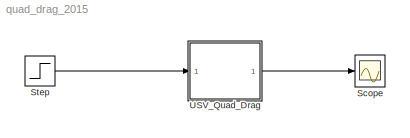
MODEL quad_drag_2015
KIND model
BLOCK [Scope] Scope
  Ports = [1]
  SID = 15
  ScopeSpecificationString = Simulink.scopes.TimeScopeBlockCfg('CurrentConfiguration', extmgr.ConfigurationSet(extmgr.Configuration('Core','General UI',true),extmgr.Configuration('Core','Source UI',true),extmgr.Configuration('Sources','WiredSimulink',true),extmgr.Configuration('Visuals','Time Domain',true,'SerializedDisplays',{struct('MinYLimReal','-0.38379','MaxYLimReal','3.45407','YLabelReal','','MinYLimMag','0.00000','MaxY...<+1333ch>
BLOCK [Step] Step
  SID = 14
  SampleTime = 0
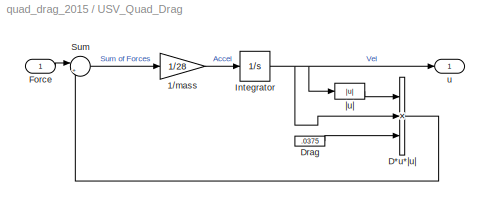
BLOCK [SubSystem] USV_Quad_Drag
  Ports = [1, 1]
  RequestExecContextInheritance = off
  SID = 8
  Variant = off
BLOCK [Gain] USV_Quad_Drag/1//mass
  Gain = 1/28
  OutDataTypeStr = Inherit: Inherit via internal rule
  ParamDataTypeStr = Inherit: Inherit via internal rule
  SID = 23
  SaturateOnIntegerOverflow = off
BLOCK [Product] USV_Quad_Drag/D*u*|u|
  InputSameDT = off
  Inputs = 3
  OutDataTypeStr = Inherit: Inherit via internal rule
  Ports = [3, 1]
  RndMeth = Floor
  SID = 18
  SaturateOnIntegerOverflow = off
BLOCK [Constant] USV_Quad_Drag/Drag
  SID = 13
  Value = .0375
BLOCK [Inport] USV_Quad_Drag/Force
  IconDisplay = Port number
  SID = 9
BLOCK [Integrator] USV_Quad_Drag/Integrator
  Ports = [1, 1]
  SID = 2
BLOCK [Sum] USV_Quad_Drag/Sum
  IconShape = round
  InputSameDT = off
  Inputs = |+-
  OutDataTypeStr = Inherit: Inherit via internal rule
  Ports = [2, 1]
  SID = 22
  SaturateOnIntegerOverflow = off
BLOCK [Outport] USV_Quad_Drag/u
  IconDisplay = Port number
  SID = 10
BLOCK [Abs] USV_Quad_Drag/|u|
  SID = 16
  SaturateOnIntegerOverflow = off
LINE Step:1 -> USV_Quad_Drag:1
LINE USV_Quad_Drag/1//mass:1 -> USV_Quad_Drag/Integrator:1
LINE USV_Quad_Drag/D*u*|u|:1 -> USV_Quad_Drag/Sum:2
LINE USV_Quad_Drag/Drag:1 -> USV_Quad_Drag/D*u*|u|:3
LINE USV_Quad_Drag/Force:1 -> USV_Quad_Drag/Sum:1
NET USV_Quad_Drag/Integrator:1 -> USV_Quad_Drag/D*u*|u|:2, USV_Quad_Drag/u:1, USV_Quad_Drag/|u|:1
LINE USV_Quad_Drag/Sum:1 -> USV_Quad_Drag/1//mass:1
LINE USV_Quad_Drag/|u|:1 -> USV_Quad_Drag/D*u*|u|:1
LINE USV_Quad_Drag:1 -> Scope:1
note: NET lines group one-source signal fan-out (src -> all destinations, sorted); 1:1 wires keep LINE
